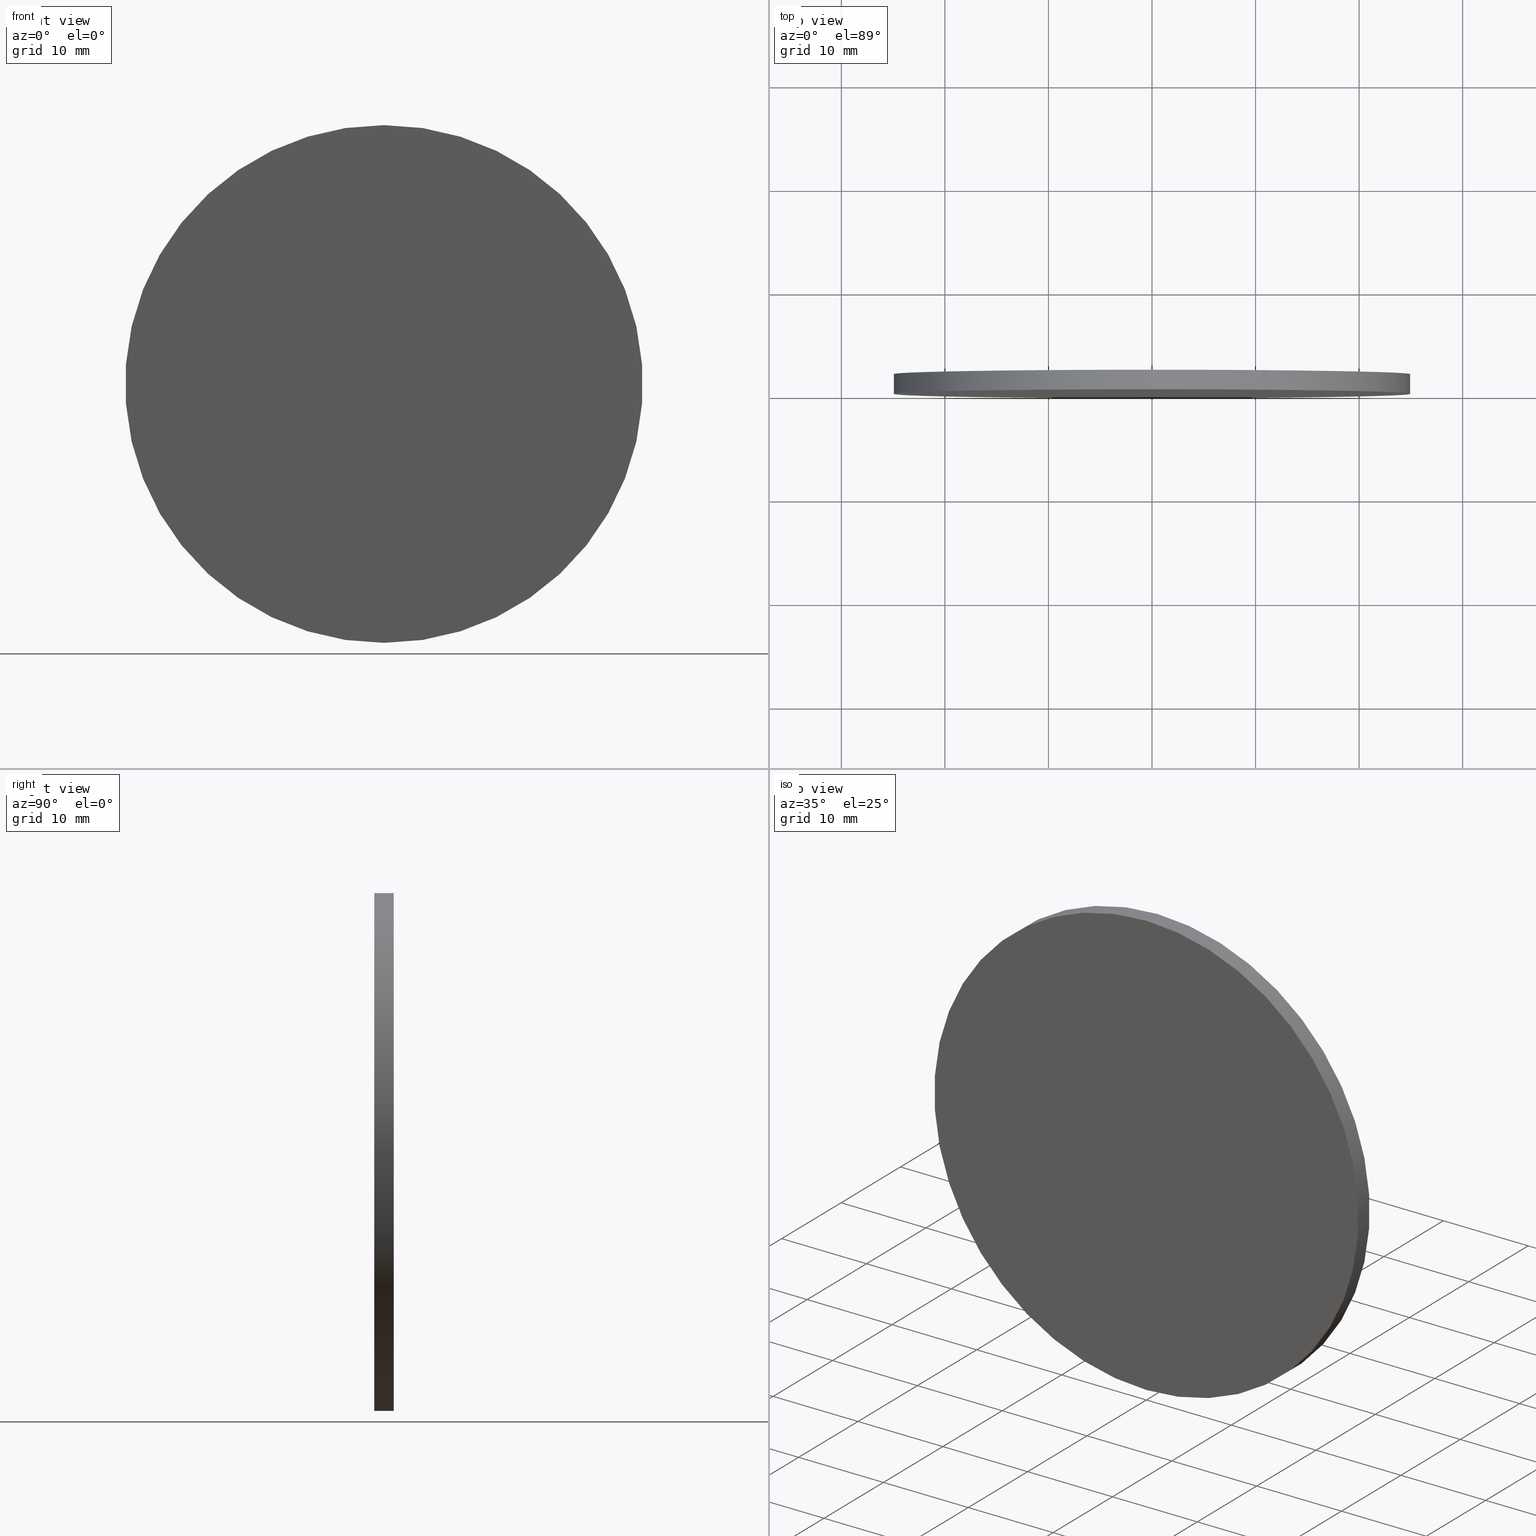
[diagram: canonical four-view strip — front | top / right | iso, engineering-drawing reading convention]
A machine part, canonical four-view strip (front | top / right | iso — engineering-drawing reading convention). The complete STEP part file that produces these views, byte-faithful:
ISO-10303-21;
HEADER;
FILE_DESCRIPTION (( 'STEP AP214' ),
    '1' );
FILE_NAME ('248606.STEP',
    '2019-08-06T05:41:57',
    ( 'user' ),
    ( '΢���й�' ),
    'SwSTEP 2.0',
    'SolidWorks 2016',
    '' );
FILE_SCHEMA (( 'AUTOMOTIVE_DESIGN' ));
ENDSEC;

DATA;
#1 =( GEOMETRIC_REPRESENTATION_CONTEXT ( 3 ) GLOBAL_UNCERTAINTY_ASSIGNED_CONTEXT ( ( #55 ) ) GLOBAL_UNIT_ASSIGNED_CONTEXT ( ( #32, #19, #28 ) ) REPRESENTATION_CONTEXT ( 'NONE', 'WORKASPACE' ) );
#2 = FACE_OUTER_BOUND ( 'NONE', #52, .T. ) ;
#3 = CARTESIAN_POINT ( 'NONE',  ( 0.0000000000000000000, 1.889999999999999900, 0.0000000000000000000 ) ) ;
#4 = PRODUCT_CONTEXT ( 'NONE', #42, 'mechanical' ) ;
#5 = CARTESIAN_POINT ( 'NONE',  ( 0.0000000000000000000, 0.0000000000000000000, 0.0000000000000000000 ) ) ;
#6 = VERTEX_POINT ( 'NONE', #16 ) ;
#7 = AXIS2_PLACEMENT_3D ( 'NONE', #41, #43, #44 ) ;
#8 = DIRECTION ( 'NONE',  ( 0.0000000000000000000, 0.0000000000000000000, 1.000000000000000000 ) ) ;
#9 = PRODUCT ( '248606', '248606', '', ( #4 ) ) ;
#10 = EDGE_LOOP ( 'NONE', ( #72, #116 ) ) ;
#11 = PRODUCT_DEFINITION_FORMATION_WITH_SPECIFIED_SOURCE ( '�κ�', '', #9, .NOT_KNOWN. ) ;
#12 = CARTESIAN_POINT ( 'NONE',  ( 3.061616997868383000E-015, 1.889999999999999900, 25.00000000000000000 ) ) ;
#13 = DIRECTION ( 'NONE',  ( -0.0000000000000000000, -1.000000000000000000, -0.0000000000000000000 ) ) ;
#14 = APPLICATION_PROTOCOL_DEFINITION ( 'draft international standard', 'automotive_design', 1998, #103 ) ;
#15 = UNCERTAINTY_MEASURE_WITH_UNIT (LENGTH_MEASURE( 1.000000000000000100E-005 ), #121, 'distance_accuracy_value', 'NONE');
#16 = CARTESIAN_POINT ( 'NONE',  ( 3.061616997868383000E-015, 0.0000000000000000000, 25.00000000000000000 ) ) ;
#17 = EDGE_CURVE ( 'NONE', #100, #6, #25, .T. ) ;
#18 = AXIS2_PLACEMENT_3D ( 'NONE', #90, #138, #31 ) ;
#19 =( NAMED_UNIT ( * ) PLANE_ANGLE_UNIT ( ) SI_UNIT ( $, .RADIAN. ) );
#20 = PRESENTATION_LAYER_ASSIGNMENT (  '', '', ( #131 ) ) ;
#21 = DIRECTION ( 'NONE',  ( 0.0000000000000000000, 1.000000000000000000, 0.0000000000000000000 ) ) ;
#22 = CIRCLE ( 'NONE', #125, 25.00000000000000000 ) ;
#23 = EDGE_CURVE ( 'NONE', #100, #139, #24, .T. ) ;
#24 = CIRCLE ( 'NONE', #7, 25.00000000000000000 ) ;
#25 = LINE ( 'NONE', #53, #106 ) ;
#26 = LINE ( 'NONE', #63, #130 ) ;
#27 =( GEOMETRIC_REPRESENTATION_CONTEXT ( 3 ) GLOBAL_UNCERTAINTY_ASSIGNED_CONTEXT ( ( #127 ) ) GLOBAL_UNIT_ASSIGNED_CONTEXT ( ( #85, #65, #97 ) ) REPRESENTATION_CONTEXT ( 'NONE', 'WORKASPACE' ) );
#28 =( NAMED_UNIT ( * ) SI_UNIT ( $, .STERADIAN. ) SOLID_ANGLE_UNIT ( ) );
#29 = EDGE_CURVE ( 'NONE', #139, #86, #26, .T. ) ;
#30 = FACE_OUTER_BOUND ( 'NONE', #135, .T. ) ;
#31 = DIRECTION ( 'NONE',  ( 1.000000000000000000, 0.0000000000000000000, 0.0000000000000000000 ) ) ;
#32 =( LENGTH_UNIT ( ) NAMED_UNIT ( * ) SI_UNIT ( .MILLI., .METRE. ) );
#33 = ORIENTED_EDGE ( 'NONE', *, *, #105, .F. ) ;
#34 = PRODUCT_DEFINITION_SHAPE ( 'NONE', 'NONE',  #137 ) ;
#35 = EDGE_CURVE ( 'NONE', #139, #100, #36, .T. ) ;
#36 = CIRCLE ( 'NONE', #96, 25.00000000000000000 ) ;
#37 = CARTESIAN_POINT ( 'NONE',  ( 0.0000000000000000000, 1.889999999999999900, 0.0000000000000000000 ) ) ;
#38 = CARTESIAN_POINT ( 'NONE',  ( 0.0000000000000000000, 1.889999999999999900, 0.0000000000000000000 ) ) ;
#39 = DIRECTION ( 'NONE',  ( -0.0000000000000000000, -1.000000000000000000, -0.0000000000000000000 ) ) ;
#40 = PRODUCT_RELATED_PRODUCT_CATEGORY ( 'part', '', ( #9 ) ) ;
#41 = CARTESIAN_POINT ( 'NONE',  ( 0.0000000000000000000, 1.889999999999999900, 0.0000000000000000000 ) ) ;
#42 = APPLICATION_CONTEXT ( 'automotive_design' ) ;
#43 = DIRECTION ( 'NONE',  ( 0.0000000000000000000, 1.000000000000000000, 0.0000000000000000000 ) ) ;
#44 = DIRECTION ( 'NONE',  ( 0.0000000000000000000, 0.0000000000000000000, 1.000000000000000000 ) ) ;
#45 = ORIENTED_EDGE ( 'NONE', *, *, #105, .T. ) ;
#46 = COLOUR_RGB ( '',1.000000000000000000, 1.000000000000000000, 1.000000000000000000 ) ;
#47 = ORIENTED_EDGE ( 'NONE', *, *, #57, .T. ) ;
#48 = AXIS2_PLACEMENT_3D ( 'NONE', #37, #112, #110 ) ;
#49 = CIRCLE ( 'NONE', #67, 25.00000000000000000 ) ;
#50 = DIRECTION ( 'NONE',  ( -0.0000000000000000000, -1.000000000000000000, -0.0000000000000000000 ) ) ;
#51 = SURFACE_SIDE_STYLE ('',( #75 ) ) ;
#52 = EDGE_LOOP ( 'NONE', ( #62, #56, #47, #129 ) ) ;
#53 = CARTESIAN_POINT ( 'NONE',  ( 3.061616997868383000E-015, 1.889999999999999900, 25.00000000000000000 ) ) ;
#54 = COLOUR_RGB ( '',1.000000000000000000, 1.000000000000000000, 1.000000000000000000 ) ;
#55 = UNCERTAINTY_MEASURE_WITH_UNIT (LENGTH_MEASURE( 1.000000000000000100E-005 ), #32, 'distance_accuracy_value', 'NONE');
#56 = ORIENTED_EDGE ( 'NONE', *, *, #17, .T. ) ;
#57 = EDGE_CURVE ( 'NONE', #6, #86, #22, .T. ) ;
#58 = FACE_OUTER_BOUND ( 'NONE', #66, .T. ) ;
#59 = DIRECTION ( 'NONE',  ( 0.0000000000000000000, 1.000000000000000000, 0.0000000000000000000 ) ) ;
#60 = AXIS2_PLACEMENT_3D ( 'NONE', #38, #39, #92 ) ;
#61 = APPLICATION_PROTOCOL_DEFINITION ( 'draft international standard', 'automotive_design', 1998, #42 ) ;
#62 = ORIENTED_EDGE ( 'NONE', *, *, #23, .F. ) ;
#63 = CARTESIAN_POINT ( 'NONE',  ( 0.0000000000000000000, 1.889999999999999900, -25.00000000000000000 ) ) ;
#64 = DIRECTION ( 'NONE',  ( 0.0000000000000000000, 0.0000000000000000000, 1.000000000000000000 ) ) ;
#65 =( NAMED_UNIT ( * ) PLANE_ANGLE_UNIT ( ) SI_UNIT ( $, .RADIAN. ) );
#66 = EDGE_LOOP ( 'NONE', ( #122, #89, #76, #45 ) ) ;
#67 = AXIS2_PLACEMENT_3D ( 'NONE', #94, #108, #95 ) ;
#68 = CYLINDRICAL_SURFACE ( 'NONE', #60, 25.00000000000000000 ) ;
#69 = DIRECTION ( 'NONE',  ( 0.0000000000000000000, 1.000000000000000000, 0.0000000000000000000 ) ) ;
#70 = DIRECTION ( 'NONE',  ( 0.0000000000000000000, -0.0000000000000000000, 1.000000000000000000 ) ) ;
#71 = FILL_AREA_STYLE_COLOUR ( '', #46 ) ;
#72 = ORIENTED_EDGE ( 'NONE', *, *, #35, .T. ) ;
#73 = PRESENTATION_LAYER_ASSIGNMENT (  '', '', ( #113 ) ) ;
#74 = CLOSED_SHELL ( 'NONE', ( #120, #114, #119, #88 ) ) ;
#75 = SURFACE_STYLE_FILL_AREA ( #82 ) ;
#76 = ORIENTED_EDGE ( 'NONE', *, *, #29, .T. ) ;
#77 = DIRECTION ( 'NONE',  ( 0.0000000000000000000, 1.000000000000000000, 0.0000000000000000000 ) ) ;
#78 = ADVANCED_BREP_SHAPE_REPRESENTATION ( '248606', ( #111, #18 ), #27 ) ;
#79 = MECHANICAL_DESIGN_GEOMETRIC_PRESENTATION_REPRESENTATION (  '', ( #113 ), #1 ) ;
#80 = CARTESIAN_POINT ( 'NONE',  ( 0.0000000000000000000, 1.889999999999999900, -25.00000000000000000 ) ) ;
#81 =( GEOMETRIC_REPRESENTATION_CONTEXT ( 3 ) GLOBAL_UNCERTAINTY_ASSIGNED_CONTEXT ( ( #15 ) ) GLOBAL_UNIT_ASSIGNED_CONTEXT ( ( #121, #126, #128 ) ) REPRESENTATION_CONTEXT ( 'NONE', 'WORKASPACE' ) );
#82 = FILL_AREA_STYLE ('',( #71 ) ) ;
#83 = ORIENTED_EDGE ( 'NONE', *, *, #57, .F. ) ;
#84 = PRESENTATION_STYLE_ASSIGNMENT (( #99 ) ) ;
#85 =( LENGTH_UNIT ( ) NAMED_UNIT ( * ) SI_UNIT ( .MILLI., .METRE. ) );
#86 = VERTEX_POINT ( 'NONE', #117 ) ;
#87 = AXIS2_PLACEMENT_3D ( 'NONE', #5, #69, #70 ) ;
#88 = ADVANCED_FACE ( 'NONE', ( #30 ), #133, .F. ) ;
#89 = ORIENTED_EDGE ( 'NONE', *, *, #35, .F. ) ;
#90 = CARTESIAN_POINT ( 'NONE',  ( 0.0000000000000000000, 0.0000000000000000000, 0.0000000000000000000 ) ) ;
#91 = SURFACE_SIDE_STYLE ('',( #101 ) ) ;
#92 = DIRECTION ( 'NONE',  ( 0.0000000000000000000, 0.0000000000000000000, -1.000000000000000000 ) ) ;
#93 = FACE_OUTER_BOUND ( 'NONE', #10, .T. ) ;
#94 = CARTESIAN_POINT ( 'NONE',  ( 0.0000000000000000000, 0.0000000000000000000, 0.0000000000000000000 ) ) ;
#95 = DIRECTION ( 'NONE',  ( 0.0000000000000000000, 0.0000000000000000000, 1.000000000000000000 ) ) ;
#96 = AXIS2_PLACEMENT_3D ( 'NONE', #3, #21, #8 ) ;
#97 =( NAMED_UNIT ( * ) SI_UNIT ( $, .STERADIAN. ) SOLID_ANGLE_UNIT ( ) );
#98 = AXIS2_PLACEMENT_3D ( 'NONE', #109, #77, #123 ) ;
#99 = SURFACE_STYLE_USAGE ( .BOTH. , #51 ) ;
#100 = VERTEX_POINT ( 'NONE', #12 ) ;
#101 = SURFACE_STYLE_FILL_AREA ( #124 ) ;
#102 = CARTESIAN_POINT ( 'NONE',  ( 0.0000000000000000000, 0.0000000000000000000, 0.0000000000000000000 ) ) ;
#103 = APPLICATION_CONTEXT ( 'automotive_design' ) ;
#104 = SURFACE_STYLE_USAGE ( .BOTH. , #91 ) ;
#105 = EDGE_CURVE ( 'NONE', #86, #6, #49, .T. ) ;
#106 = VECTOR ( 'NONE', #13, 1000.000000000000000 ) ;
#107 = PRODUCT_DEFINITION_CONTEXT ( 'detailed design', #103, 'design' ) ;
#108 = DIRECTION ( 'NONE',  ( 0.0000000000000000000, 1.000000000000000000, 0.0000000000000000000 ) ) ;
#109 = CARTESIAN_POINT ( 'NONE',  ( 0.0000000000000000000, 1.889999999999999900, 0.0000000000000000000 ) ) ;
#110 = DIRECTION ( 'NONE',  ( 0.0000000000000000000, 0.0000000000000000000, -1.000000000000000000 ) ) ;
#111 = MANIFOLD_SOLID_BREP ( '͹̨-����1', #74 ) ;
#112 = DIRECTION ( 'NONE',  ( -0.0000000000000000000, -1.000000000000000000, -0.0000000000000000000 ) ) ;
#113 = STYLED_ITEM ( 'NONE', ( #84 ), #111 ) ;
#114 = ADVANCED_FACE ( 'NONE', ( #58 ), #68, .T. ) ;
#115 = MECHANICAL_DESIGN_GEOMETRIC_PRESENTATION_REPRESENTATION (  '', ( #131 ), #81 ) ;
#116 = ORIENTED_EDGE ( 'NONE', *, *, #23, .T. ) ;
#117 = CARTESIAN_POINT ( 'NONE',  ( 0.0000000000000000000, 0.0000000000000000000, -25.00000000000000000 ) ) ;
#118 = PRESENTATION_STYLE_ASSIGNMENT (( #104 ) ) ;
#119 = ADVANCED_FACE ( 'NONE', ( #93 ), #136, .T. ) ;
#120 = ADVANCED_FACE ( 'NONE', ( #2 ), #132, .T. ) ;
#121 =( LENGTH_UNIT ( ) NAMED_UNIT ( * ) SI_UNIT ( .MILLI., .METRE. ) );
#122 = ORIENTED_EDGE ( 'NONE', *, *, #17, .F. ) ;
#123 = DIRECTION ( 'NONE',  ( 0.0000000000000000000, -0.0000000000000000000, 1.000000000000000000 ) ) ;
#124 = FILL_AREA_STYLE ('',( #134 ) ) ;
#125 = AXIS2_PLACEMENT_3D ( 'NONE', #102, #59, #64 ) ;
#126 =( NAMED_UNIT ( * ) PLANE_ANGLE_UNIT ( ) SI_UNIT ( $, .RADIAN. ) );
#127 = UNCERTAINTY_MEASURE_WITH_UNIT (LENGTH_MEASURE( 1.000000000000000100E-005 ), #85, 'distance_accuracy_value', 'NONE');
#128 =( NAMED_UNIT ( * ) SI_UNIT ( $, .STERADIAN. ) SOLID_ANGLE_UNIT ( ) );
#129 = ORIENTED_EDGE ( 'NONE', *, *, #29, .F. ) ;
#130 = VECTOR ( 'NONE', #50, 1000.000000000000000 ) ;
#131 = STYLED_ITEM ( 'NONE', ( #118 ), #78 ) ;
#132 = CYLINDRICAL_SURFACE ( 'NONE', #48, 25.00000000000000000 ) ;
#133 = PLANE ( 'NONE',  #87 ) ;
#134 = FILL_AREA_STYLE_COLOUR ( '', #54 ) ;
#135 = EDGE_LOOP ( 'NONE', ( #33, #83 ) ) ;
#136 = PLANE ( 'NONE',  #98 ) ;
#137 = PRODUCT_DEFINITION ( 'δ֪', '', #11, #107 ) ;
#138 = DIRECTION ( 'NONE',  ( 0.0000000000000000000, 0.0000000000000000000, 1.000000000000000000 ) ) ;
#139 = VERTEX_POINT ( 'NONE', #80 ) ;
#140 = SHAPE_DEFINITION_REPRESENTATION ( #34, #78 ) ;
ENDSEC;
END-ISO-10303-21;
